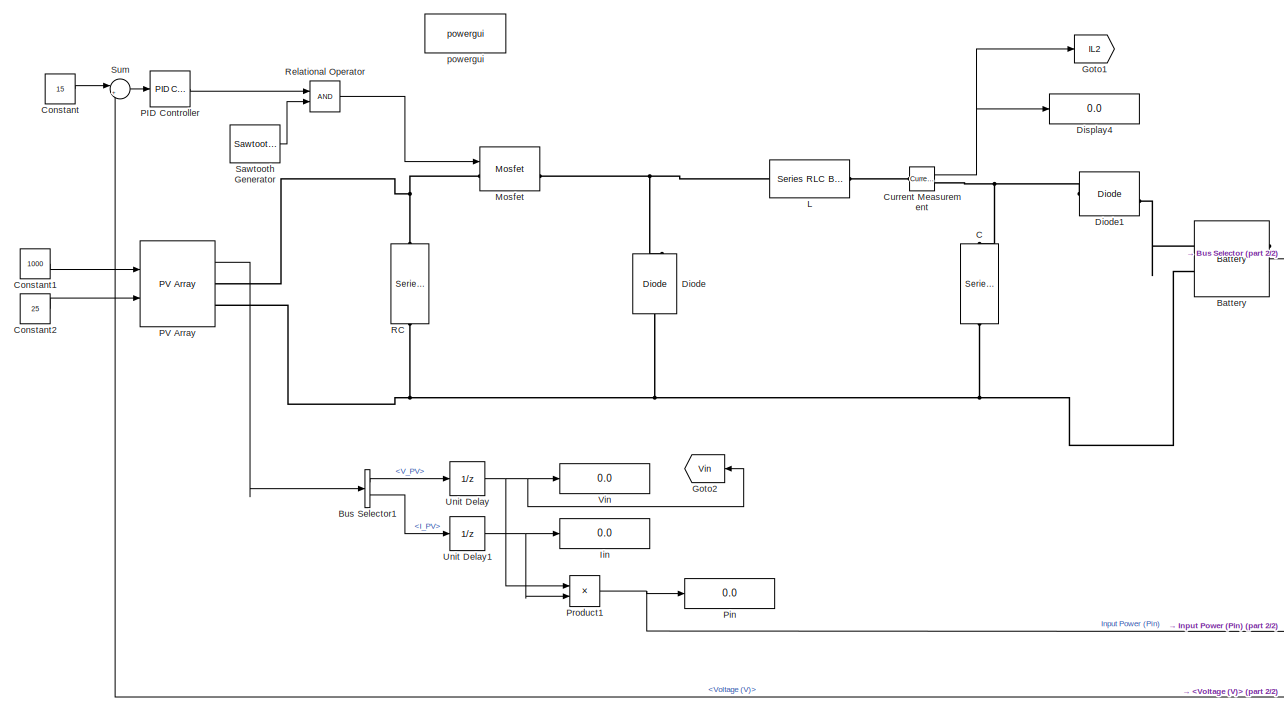
[diagram: root canvas - part 1/2, center side, full height]
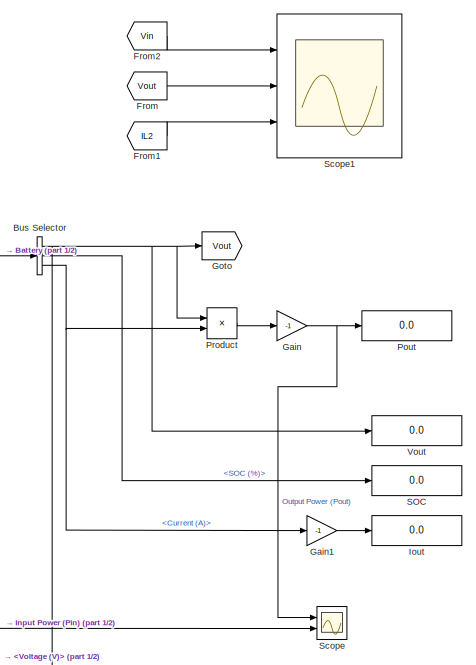
[diagram: root canvas - part 2/2, right side, full height]
MODEL slx_3209c937a7ba
KIND model
CONFIG AbsTol = auto
CONFIG EnableMultiTasking = off
CONFIG FixedStep = auto
CONFIG MaxStep = auto
CONFIG MinStep = auto
CONFIG RelTol = 1e-3
CONFIG SampleTimeConstraint = Unconstrained
CONFIG SolverName = VariableStepAuto
CONFIG StartTime = 0.0
CONFIG StopTime = 1
BLOCK [Reference] Battery  REF=spsBatteryLib/Battery
  NameLocation = top
  Ports = [0, 1, 0, 0, 0, 2]
  SourceBlock = spsBatteryLib/Battery
  SourceProductBaseCode = PS
  SourceType = Battery
BLOCK [BusSelector] Bus Selector
  OutputSignals = Voltage (V),SOC (%),Current (A)
  Ports = [1, 3]
BLOCK [BusSelector] Bus Selector1
  OutputSignals = V_PV,I_PV
  Ports = [1, 2]
BLOCK [Reference] C  REF=spsSeriesRLCBranchLib/Series RLC Branch
  NameLocation = left
  Ports = [0, 0, 0, 0, 0, 1, 1]
  SourceBlock = spsSeriesRLCBranchLib/Series RLC Branch
  SourceProductBaseCode = PS
  SourceType = Series RLC Branch
BLOCK [Constant] Constant
  Value = 15
BLOCK [Constant] Constant1
  Value = 1000
BLOCK [Constant] Constant2
  Value = 25
BLOCK [Reference] Current Measurement  REF=spsCurrentMeasurementLib/Current Measurement
  Ports = [0, 1, 0, 0, 0, 1, 1]
  SourceBlock = spsCurrentMeasurementLib/Current Measurement
  SourceProductBaseCode = PS
  SourceType = Current Measurement
  UserDataPersistent = on
BLOCK [Reference] Diode  REF=spsDiodeLib/Diode
  NameLocation = right
  Ports = [0, 1, 0, 0, 0, 1, 1]
  SourceBlock = spsDiodeLib/Diode
  SourceProductBaseCode = PS
  SourceType = Diode
BLOCK [Reference] Diode1  REF=spsDiodeLib/Diode
  Ports = [0, 1, 0, 0, 0, 1, 1]
  SourceBlock = spsDiodeLib/Diode
  SourceProductBaseCode = PS
  SourceType = Diode
BLOCK [Display] Display4
  Decimation = 1
  Ports = [1]
BLOCK [From] From
  GotoTag = Vout
BLOCK [From] From1
  GotoTag = IL2
BLOCK [From] From2
  GotoTag = Vin
BLOCK [Gain] Gain
  Gain = -1
BLOCK [Gain] Gain1
  Gain = -1
BLOCK [Goto] Goto
  GotoTag = Vout
BLOCK [Goto] Goto1
  GotoTag = IL2
BLOCK [Goto] Goto2
  GotoTag = Vin
  NameLocation = top
BLOCK [Display] Iin
  Decimation = 1
  Ports = [1]
BLOCK [Display] Iout
  Decimation = 1
  Ports = [1]
BLOCK [Reference] L  REF=spsSeriesRLCBranchLib/Series RLC Branch
  NameLocation = top
  Ports = [0, 0, 0, 0, 0, 1, 1]
  SourceBlock = spsSeriesRLCBranchLib/Series RLC Branch
  SourceProductBaseCode = PS
  SourceType = Series RLC Branch
BLOCK [Reference] Mosfet  REF=spsMosfetLib/Mosfet
  Ports = [1, 1, 0, 0, 0, 1, 1]
  SourceBlock = spsMosfetLib/Mosfet
  SourceProductBaseCode = PS
  SourceType = Mosfet
BLOCK [Reference] PID Controller  REF=slpidlib/PID Controller
  Ports = [1, 1]
  SourceBlock = slpidlib/PID Controller
  SourceProductBaseCode = SL
  SourceType = PID 1dof
BLOCK [Reference] PV Array  REF=spsPVArrayLib/PV Array
  Ports = [2, 1, 0, 0, 0, 0, 2]
  SourceBlock = spsPVArrayLib/PV Array
  SourceProductBaseCode = PS
  SourceType = PV array
BLOCK [Display] Pin
  Decimation = 1
  Ports = [1]
BLOCK [Display] Pout
  Decimation = 1
  Ports = [1]
BLOCK [Product] Product
  Ports = [2, 1]
BLOCK [Product] Product1
  Ports = [2, 1]
BLOCK [Reference] RC  REF=spsSeriesRLCBranchLib/Series RLC Branch
  NameLocation = left
  Ports = [0, 0, 0, 0, 0, 1, 1]
  SourceBlock = spsSeriesRLCBranchLib/Series RLC Branch
  SourceProductBaseCode = PS
  SourceType = Series RLC Branch
BLOCK [RelationalOperator] Relational Operator
  InputSameDT = off
  OutDataTypeStr = boolean
  Ports = [2, 1]
  RndMeth = Simplest
BLOCK [Display] SOC
  Decimation = 1
  Ports = [1]
BLOCK [Reference] Sawtooth Generator  REF=spsSawtoothGeneratorLib/Sawtooth
Generator
  Ports = [0, 1]
  SourceBlock = spsSawtoothGeneratorLib/Sawtooth\nGenerator
  SourceProductBaseCode = PS
  SourceType = Sawtooth Generator
BLOCK [Scope] Scope
  Floating = off
  NumInputPorts = 2
  Ports = [2]
  ScopeSpecificationString = Simulink.scopes.TimeScopeBlockCfg('CurrentConfiguration', extmgr.ConfigurationSet(extmgr.Configuration('Core','General UI',true),extmgr.Configuration('Core','Source UI',true),extmgr.Configuration('Sources','WiredSimulink',true),extmgr.Configuration('Visuals','Time Domain',true,'SerializedDisplays',{struct('MinYLimReal','-37.01935','MaxYLimReal','329.00913','YLabelReal','','MinYLimMag','0.00000','M...<+2037ch>
BLOCK [Scope] Scope1
  Floating = off
  NumInputPorts = 3
  Ports = [3]
  ScopeSpecificationString = Simulink.scopes.TimeScopeBlockCfg('CurrentConfiguration', extmgr.ConfigurationSet(extmgr.Configuration('Core','General UI',true),extmgr.Configuration('Core','Source UI',true),extmgr.Configuration('Sources','WiredSimulink',true,'DataLoggingVariableName','ScopeData1'),extmgr.Configuration('Visuals','Time Domain',true,'SerializedDisplays',{struct('MinYLimReal','-2.87722','MaxYLimReal','25.89498','YLa...<+2742ch>
BLOCK [Sum] Sum
  Inputs = |+-
  Ports = [2, 1]
BLOCK [UnitDelay] Unit Delay
  HasFrameUpgradeWarning = on
  SampleTime = -1
BLOCK [UnitDelay] Unit Delay1
  HasFrameUpgradeWarning = on
  SampleTime = -1
BLOCK [Display] Vin
  Decimation = 1
  Ports = [1]
BLOCK [Display] Vout
  Decimation = 1
  Ports = [1]
BLOCK [Reference] powergui  REF=spspowerguiLib/powergui
  Ports = []
  Priority = 1
  SourceBlock = spspowerguiLib/powergui
  SourceProductBaseCode = PS
  SourceType = PSB option menu block
LINE Battery:1 -> Bus Selector:1
LINE Bus Selector1:1 -> Unit Delay:1
LINE Bus Selector1:2 -> Unit Delay1:1
NET Bus Selector:1 -> Goto:1, Product:1, Sum:2, Vout:1
LINE Bus Selector:2 -> SOC:1
NET Bus Selector:3 -> Gain1:1, Product:2
LINE Constant1:1 -> PV Array:1
LINE Constant2:1 -> PV Array:2
LINE Constant:1 -> Sum:1
NET Current Measurement:1 -> Display4:1, Goto1:1
LINE From1:1 -> Scope1:3
LINE From2:1 -> Scope1:1
LINE From:1 -> Scope1:2
LINE Gain1:1 -> Iout:1
NET Gain:1 -> Pout:1, Scope:1
LINE PID Controller:1 -> Relational Operator:1
LINE PV Array:1 -> Bus Selector1:1
NET Product1:1 -> Pin:1, Scope:2
LINE Product:1 -> Gain:1
LINE Relational Operator:1 -> Mosfet:1
LINE Sawtooth Generator:1 -> Relational Operator:2
LINE Sum:1 -> PID Controller:1
NET Unit Delay1:1 -> Iin:1, Product1:2
NET Unit Delay:1 -> Goto2:1, Product1:1, Vin:1
PLINE Battery:LConn1 -- Diode1:RConn1
PNET net1: Battery:LConn2 -- C:RConn1 -- Diode:LConn1 -- PV Array:RConn2 -- RC:RConn1
PNET net2: C:LConn1 -- Current Measurement:RConn1 -- Diode1:LConn1
PLINE Current Measurement:LConn1 -- L:LConn1
PNET net3: Diode:RConn1 -- L:RConn1 -- Mosfet:RConn1
PNET net4: Mosfet:LConn1 -- PV Array:RConn1 -- RC:LConn1
note: NET lines group one-source signal fan-out (src -> all destinations, sorted); 1:1 wires keep LINE; PNET lines group multi-terminal physical nets as a canonical sorted terminal list (undirected conserving connections); 2-terminal nets keep the pairwise PLINE form
